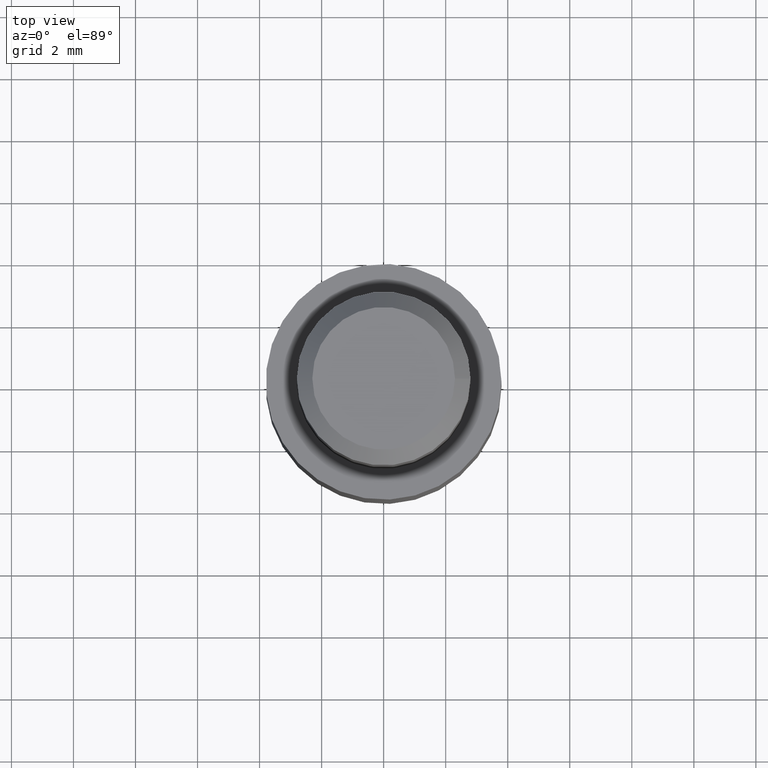
[diagram: clean part render]
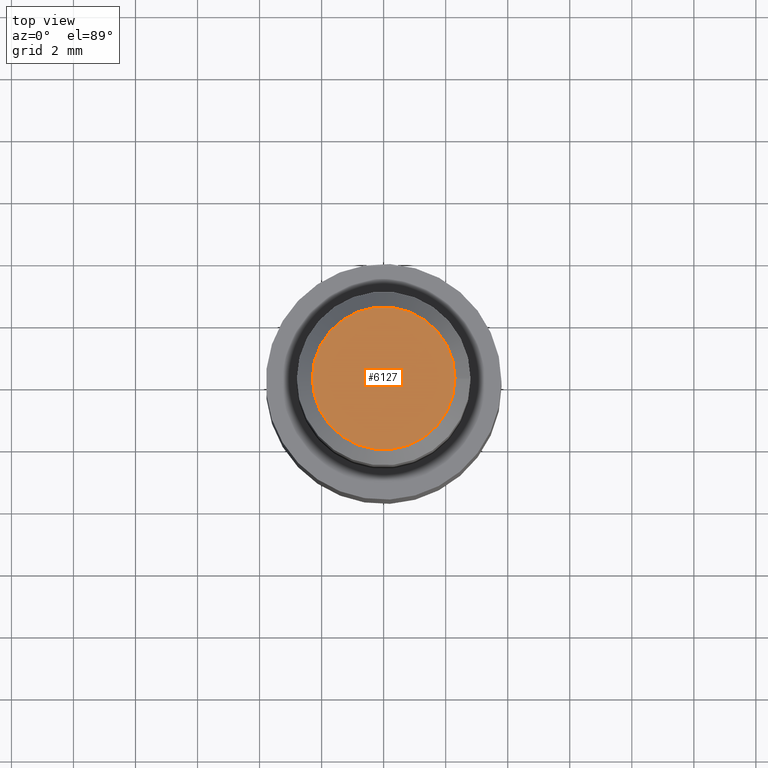
[diagram: same view with one face highlighted and labeled with its STEP entity id]
A machine part, top view. The second image highlights one B-rep face of the part: STEP entity #6127.
In plain terms, the highlighted planar face has unit normal (0, 0, 1).
Its self-contained STEP definition (entity closure, byte-faithful):
#10 = CARTESIAN_POINT ( 'NONE',  ( 0.000000000000000000, 0.000000000000000000, 21.00000000000000000 ) ) ;
#2725 = FACE_OUTER_BOUND ( 'NONE', #12308, .T. ) ;
#2779 = DIRECTION ( 'NONE',  ( 1.000000000000000000, 0.000000000000000000, -0.000000000000000000 ) ) ;
#3856 = DIRECTION ( 'NONE',  ( 0.000000000000000000, 0.000000000000000000, 1.000000000000000000 ) ) ;
#5585 = CARTESIAN_POINT ( 'NONE',  ( 2.300000000000006484, 0.000000000000000000, 21.00000000000000000 ) ) ;
#5636 = CIRCLE ( 'NONE', #8139, 2.300000000000006484 ) ;
#6127 = ADVANCED_FACE ( 'NONE', ( #2725 ), #12564, .T. ) ;
#7049 = AXIS2_PLACEMENT_3D ( 'NONE', #9603, #3856, #2779 ) ;
#7522 = VERTEX_POINT ( 'NONE', #5585 ) ;
#8139 = AXIS2_PLACEMENT_3D ( 'NONE', #10, #10615, #9669 ) ;
#9189 = EDGE_CURVE ( 'NONE', #7522, #7522, #5636, .T. ) ;
#9603 = CARTESIAN_POINT ( 'NONE',  ( 0.000000000000000000, 0.000000000000000000, 21.00000000000000000 ) ) ;
#9669 = DIRECTION ( 'NONE',  ( 1.000000000000000000, 0.000000000000000000, 0.000000000000000000 ) ) ;
#10083 = ORIENTED_EDGE ( 'NONE', *, *, #9189, .T. ) ;
#10615 = DIRECTION ( 'NONE',  ( 0.000000000000000000, 0.000000000000000000, 1.000000000000000000 ) ) ;
#12308 = EDGE_LOOP ( 'NONE', ( #10083 ) ) ;
#12564 = PLANE ( 'NONE',  #7049 ) ;